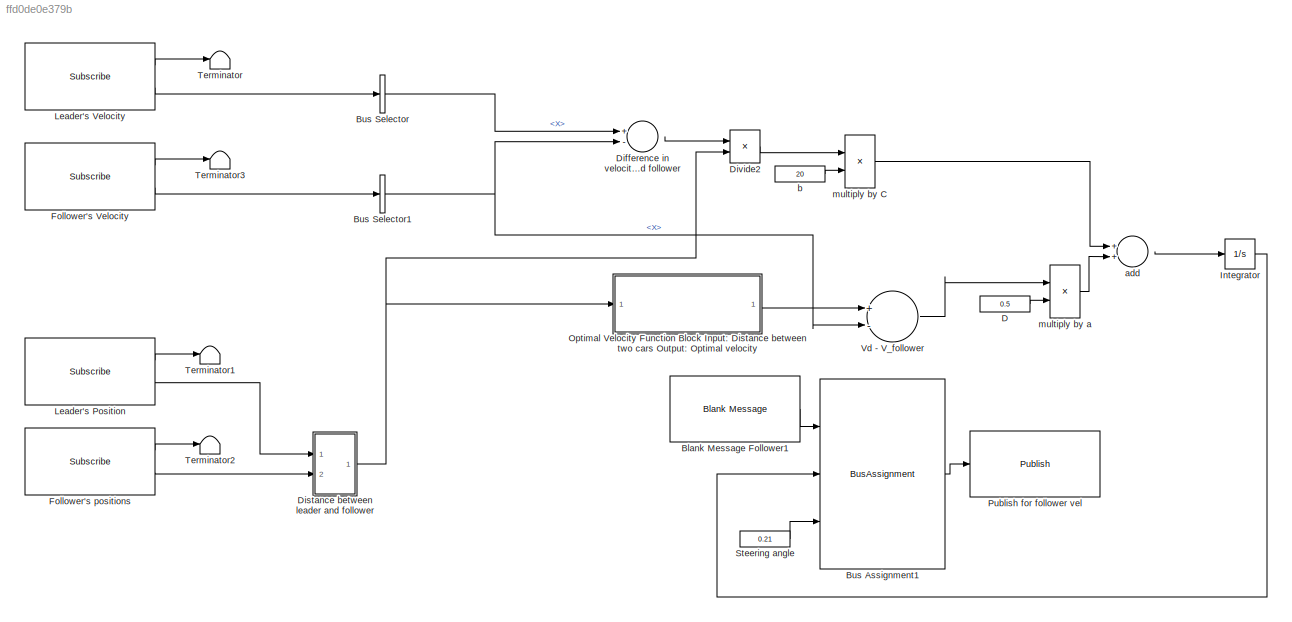
MODEL slx_ffd0de0e379b
KIND model
CONFIG AbsTol = auto
CONFIG FixedStep = auto
CONFIG MaxStep = auto
CONFIG MinStep = auto
CONFIG RelTol = 1e-3
CONFIG SampleTimeConstraint = Unconstrained
CONFIG Solver = FixedStepAuto
CONFIG SolverMode = Auto
CONFIG SolverName = FixedStepAuto
CONFIG StartTime = 0.0
CONFIG StopTime = inf
BLOCK [Reference] Blank Message Follower1  REF=robotlib/Blank Message
  Ports = [0, 1]
  SourceBlock = robotlib/Blank Message
  SourceLibraryInfo = This block requires Robotics System Toolbox
  SourceType = ROS Blank Message
BLOCK [BusAssignment] Bus Assignment1
  AssignedSignals = Linear.X,Angular.Z
  Ports = [3, 1]
BLOCK [BusSelector] Bus Selector
  OutputSignals = Linear.X
  Ports = [1, 1]
BLOCK [BusSelector] Bus Selector1
  OutputSignals = Linear.X
  Ports = [1, 1]
BLOCK [Constant] D
  Value = 0.5
BLOCK [Sum] Difference in velocity of leader and follower 
  InputSameDT = off
  Inputs = +-
  OutDataTypeStr = Inherit: Inherit via internal rule
  Ports = [2, 1]
  SaturateOnIntegerOverflow = off
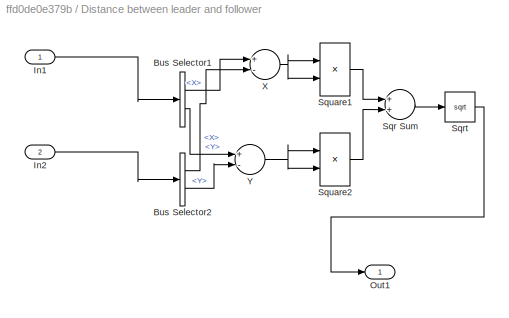
BLOCK [SubSystem] Distance between leader and follower
  Ports = [2, 1]
  RequestExecContextInheritance = off
  Variant = off
BLOCK [BusSelector] Distance between leader and follower/Bus Selector1
  OutputSignals = Pose.Pose.Position.X,Pose.Pose.Position.Y
  Ports = [1, 2]
BLOCK [BusSelector] Distance between leader and follower/Bus Selector2
  OutputSignals = Pose.Pose.Position.X,Pose.Pose.Position.Y
  Ports = [1, 2]
BLOCK [Inport] Distance between leader and follower/In1
  IconDisplay = Port number
BLOCK [Inport] Distance between leader and follower/In2
  IconDisplay = Port number
  Port = 2
BLOCK [Outport] Distance between leader and follower/Out1
  IconDisplay = Port number
BLOCK [Sum] Distance between leader and follower/Sqr Sum
  InputSameDT = off
  OutDataTypeStr = Inherit: Inherit via internal rule
  Ports = [2, 1]
  SaturateOnIntegerOverflow = off
BLOCK [Sqrt] Distance between leader and follower/Sqrt
BLOCK [Product] Distance between leader and follower/Square1
  InputSameDT = off
  OutDataTypeStr = Inherit: Inherit via internal rule
  Ports = [2, 1]
  RndMeth = Floor
  SaturateOnIntegerOverflow = off
BLOCK [Product] Distance between leader and follower/Square2
  InputSameDT = off
  OutDataTypeStr = Inherit: Inherit via internal rule
  Ports = [2, 1]
  RndMeth = Floor
  SaturateOnIntegerOverflow = off
BLOCK [Sum] Distance between leader and follower/X
  InputSameDT = off
  Inputs = +-
  OutDataTypeStr = Inherit: Inherit via internal rule
  Ports = [2, 1]
  SaturateOnIntegerOverflow = off
BLOCK [Sum] Distance between leader and follower/Y
  InputSameDT = off
  Inputs = +-
  OutDataTypeStr = Inherit: Inherit via internal rule
  Ports = [2, 1]
  SaturateOnIntegerOverflow = off
BLOCK [Product] Divide2
  InputSameDT = off
  Inputs = */
  OutDataTypeStr = Inherit: Inherit via internal rule
  Ports = [2, 1]
  RndMeth = Floor
  SaturateOnIntegerOverflow = off
BLOCK [Reference] Follower's Velocity  REF=robotlib/Subscribe
  Ports = [0, 2]
  SourceBlock = robotlib/Subscribe
  SourceLibraryInfo = This block requires Robotics System Toolbox
  SourceType = ROS Subscribe
BLOCK [Reference] Follower's positions  REF=robotlib/Subscribe
  Ports = [0, 2]
  SourceBlock = robotlib/Subscribe
  SourceLibraryInfo = This block requires Robotics System Toolbox
  SourceType = ROS Subscribe
BLOCK [Integrator] Integrator
  Ports = [1, 1]
BLOCK [Reference] Leader's Position  REF=robotlib/Subscribe
  Ports = [0, 2]
  SourceBlock = robotlib/Subscribe
  SourceLibraryInfo = This block requires Robotics System Toolbox
  SourceType = ROS Subscribe
BLOCK [Reference] Leader's Velocity  REF=robotlib/Subscribe
  Ports = [0, 2]
  SourceBlock = robotlib/Subscribe
  SourceLibraryInfo = This block requires Robotics System Toolbox
  SourceType = ROS Subscribe
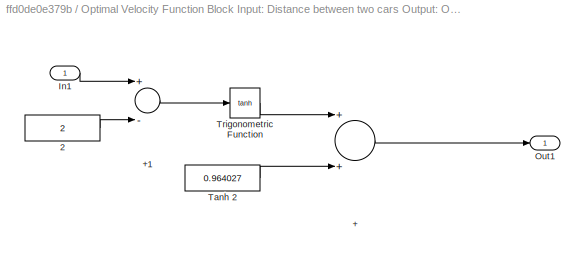
BLOCK [SubSystem] Optimal Velocity Function Block Input: Distance between two cars Output: Optimal velocity
  Ports = [1, 1]
  RequestExecContextInheritance = off
  Variant = off
BLOCK [Sum] Optimal Velocity Function Block Input: Distance between two cars Output: Optimal velocity/+
  InputSameDT = off
  OutDataTypeStr = Inherit: Inherit via internal rule
  Ports = [2, 1]
  SaturateOnIntegerOverflow = off
BLOCK [Sum] Optimal Velocity Function Block Input: Distance between two cars Output: Optimal velocity/+1
  InputSameDT = off
  Inputs = +-
  OutDataTypeStr = Inherit: Inherit via internal rule
  Ports = [2, 1]
  SaturateOnIntegerOverflow = off
BLOCK [Constant] Optimal Velocity Function Block Input: Distance between two cars Output: Optimal velocity/2
  Value = 2
BLOCK [Inport] Optimal Velocity Function Block Input: Distance between two cars Output: Optimal velocity/In1
  IconDisplay = Port number
BLOCK [Outport] Optimal Velocity Function Block Input: Distance between two cars Output: Optimal velocity/Out1
  IconDisplay = Port number
BLOCK [Constant] Optimal Velocity Function Block Input: Distance between two cars Output: Optimal velocity/Tanh 2
  Value = 0.964027
BLOCK [Trigonometry] Optimal Velocity Function Block Input: Distance between two cars Output: Optimal velocity/Trigonometric Function
  Operator = tanh
  Ports = [1, 1]
BLOCK [Reference] Publish for follower vel  REF=robotlib/Publish
  Ports = [1]
  SourceBlock = robotlib/Publish
  SourceLibraryInfo = This block requires Robotics System Toolbox
  SourceType = ROS Publish
BLOCK [Constant] Steering angle
  Value = 0.21
BLOCK [Terminator] Terminator
BLOCK [Terminator] Terminator1
BLOCK [Terminator] Terminator2
BLOCK [Terminator] Terminator3
BLOCK [Sum] Vd - V_follower
  InputSameDT = off
  Inputs = +-
  OutDataTypeStr = Inherit: Inherit via internal rule
  Ports = [2, 1]
  SaturateOnIntegerOverflow = off
BLOCK [Sum] add
  InputSameDT = off
  OutDataTypeStr = Inherit: Inherit via internal rule
  Ports = [2, 1]
  SaturateOnIntegerOverflow = off
BLOCK [Constant] b
  Value = 20
BLOCK [Product] multiply by C 
  InputSameDT = off
  OutDataTypeStr = Inherit: Inherit via internal rule
  Ports = [2, 1]
  RndMeth = Floor
  SaturateOnIntegerOverflow = off
BLOCK [Product] multiply by a
  InputSameDT = off
  OutDataTypeStr = Inherit: Inherit via internal rule
  Ports = [2, 1]
  RndMeth = Floor
  SaturateOnIntegerOverflow = off
LINE Blank Message Follower1:1 -> Bus Assignment1:1
LINE Bus Assignment1:1 -> Publish for follower vel:1
NET Bus Selector1:1 -> Difference in velocity of leader and follower :2, Vd - V_follower:2
LINE Bus Selector:1 -> Difference in velocity of leader and follower :1
LINE D:1 -> multiply by a:2
LINE Difference in velocity of leader and follower :1 -> Divide2:1
LINE Distance between leader and follower/Bus Selector1:1 -> Distance between leader and follower/X:1
LINE Distance between leader and follower/Bus Selector1:2 -> Distance between leader and follower/Y:1
LINE Distance between leader and follower/Bus Selector2:1 -> Distance between leader and follower/X:2
LINE Distance between leader and follower/Bus Selector2:2 -> Distance between leader and follower/Y:2
LINE Distance between leader and follower/In1:1 -> Distance between leader and follower/Bus Selector1:1
LINE Distance between leader and follower/In2:1 -> Distance between leader and follower/Bus Selector2:1
LINE Distance between leader and follower/Sqr Sum:1 -> Distance between leader and follower/Sqrt:1
LINE Distance between leader and follower/Sqrt:1 -> Distance between leader and follower/Out1:1
LINE Distance between leader and follower/Square1:1 -> Distance between leader and follower/Sqr Sum:1
LINE Distance between leader and follower/Square2:1 -> Distance between leader and follower/Sqr Sum:2
NET Distance between leader and follower/X:1 -> Distance between leader and follower/Square1:1, Distance between leader and follower/Square1:2
NET Distance between leader and follower/Y:1 -> Distance between leader and follower/Square2:1, Distance between leader and follower/Square2:2
NET Distance between leader and follower:1 -> Divide2:2, Optimal Velocity Function Block Input: Distance between two cars Output: Optimal velocity:1
LINE Divide2:1 -> multiply by C :1
LINE Follower's Velocity:1 -> Terminator3:1
LINE Follower's Velocity:2 -> Bus Selector1:1
LINE Follower's positions:1 -> Terminator2:1
LINE Follower's positions:2 -> Distance between leader and follower:2
LINE Integrator:1 -> Bus Assignment1:2
LINE Leader's Position:1 -> Terminator1:1
LINE Leader's Position:2 -> Distance between leader and follower:1
LINE Leader's Velocity:1 -> Terminator:1
LINE Leader's Velocity:2 -> Bus Selector:1
LINE Optimal Velocity Function Block Input: Distance between two cars Output: Optimal velocity/+1:1 -> Optimal Velocity Function Block Input: Distance between two cars Output: Optimal velocity/Trigonometric Function:1
LINE Optimal Velocity Function Block Input: Distance between two cars Output: Optimal velocity/+:1 -> Optimal Velocity Function Block Input: Distance between two cars Output: Optimal velocity/Out1:1
LINE Optimal Velocity Function Block Input: Distance between two cars Output: Optimal velocity/2:1 -> Optimal Velocity Function Block Input: Distance between two cars Output: Optimal velocity/+1:2
LINE Optimal Velocity Function Block Input: Distance between two cars Output: Optimal velocity/In1:1 -> Optimal Velocity Function Block Input: Distance between two cars Output: Optimal velocity/+1:1
LINE Optimal Velocity Function Block Input: Distance between two cars Output: Optimal velocity/Tanh 2:1 -> Optimal Velocity Function Block Input: Distance between two cars Output: Optimal velocity/+:2
LINE Optimal Velocity Function Block Input: Distance between two cars Output: Optimal velocity/Trigonometric Function:1 -> Optimal Velocity Function Block Input: Distance between two cars Output: Optimal velocity/+:1
LINE Optimal Velocity Function Block Input: Distance between two cars Output: Optimal velocity:1 -> Vd - V_follower:1
LINE Steering angle:1 -> Bus Assignment1:3
LINE Vd - V_follower:1 -> multiply by a:1
LINE add:1 -> Integrator:1
LINE b:1 -> multiply by C :2
LINE multiply by C :1 -> add:1
LINE multiply by a:1 -> add:2
note: NET lines group one-source signal fan-out (src -> all destinations, sorted); 1:1 wires keep LINE
